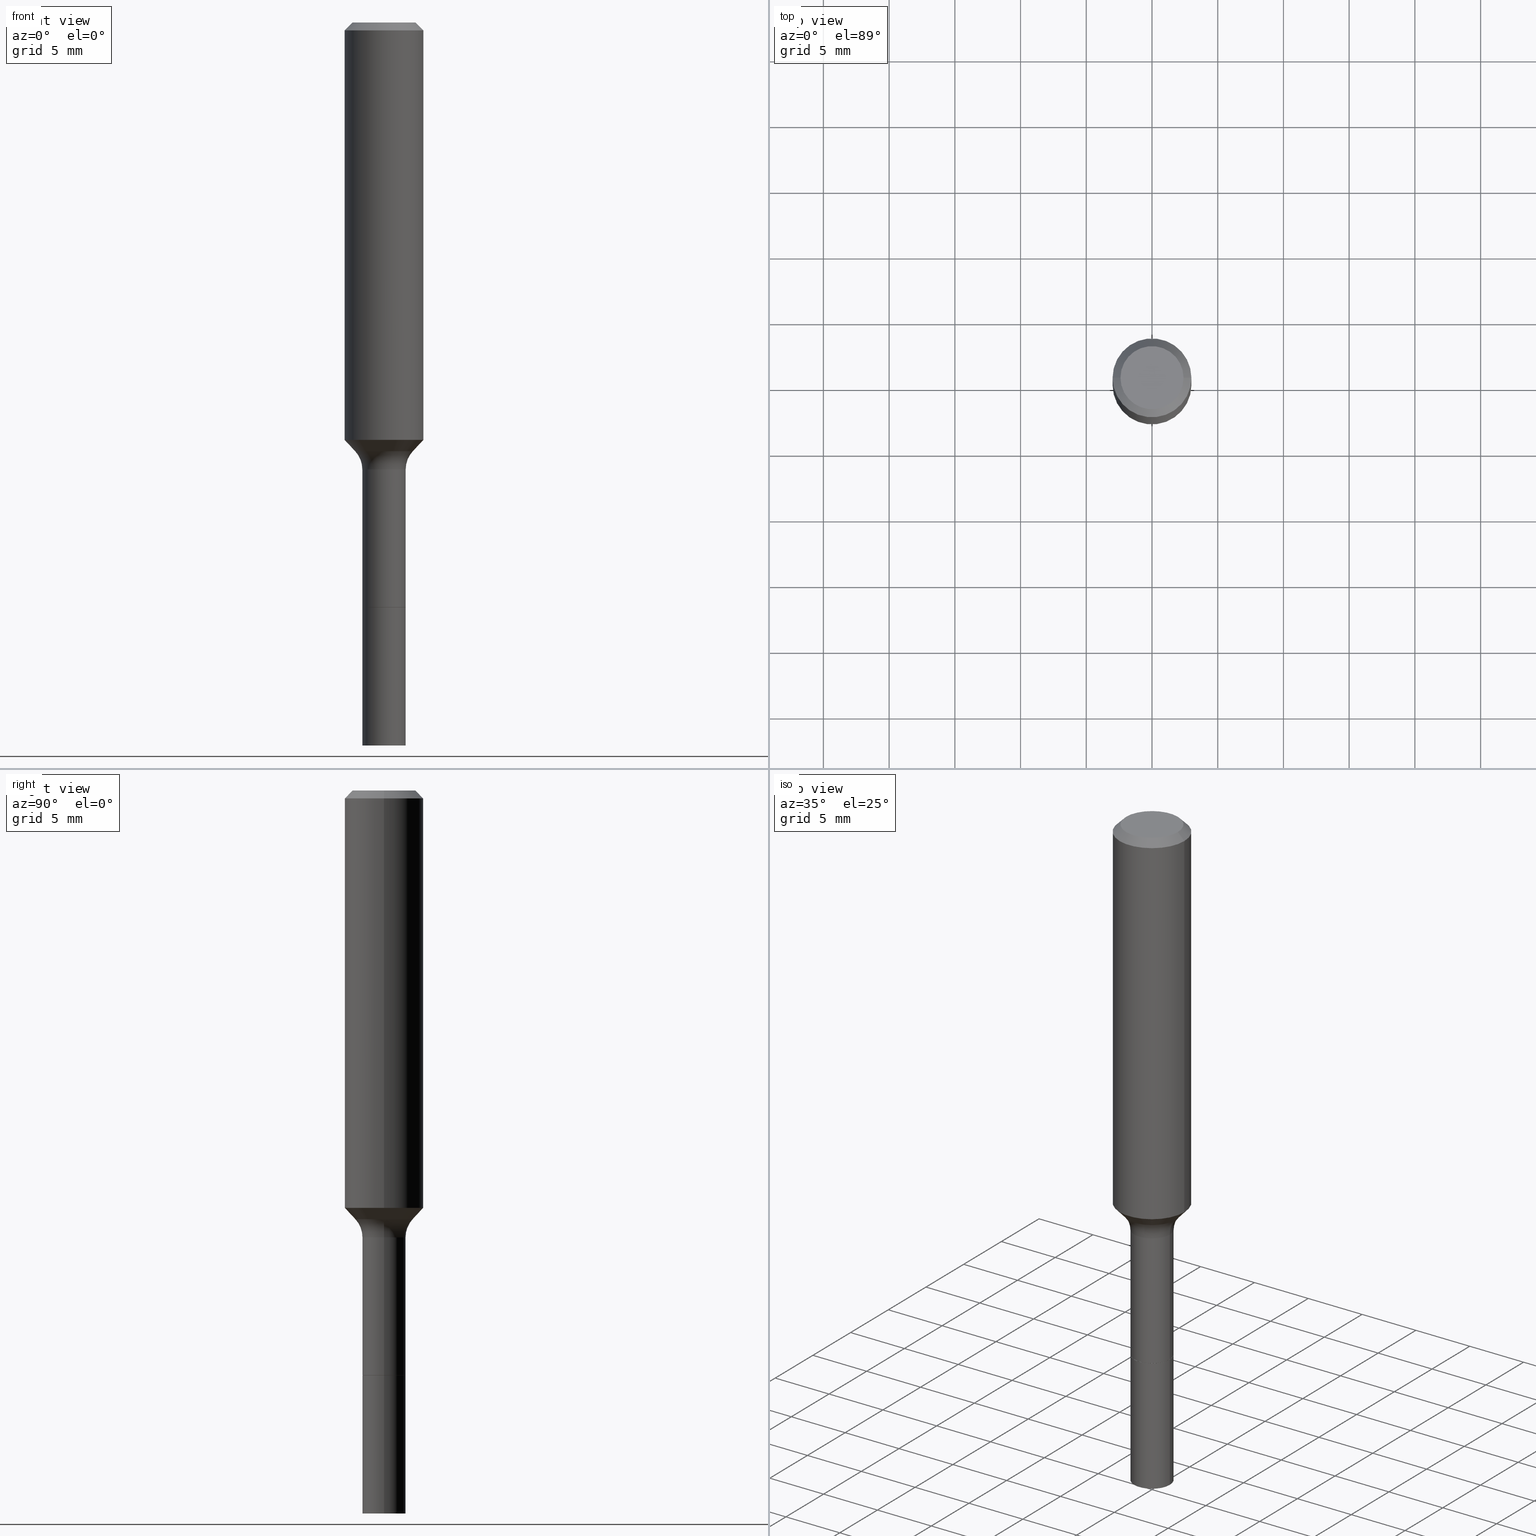
[diagram: canonical four-view strip — front | top / right | iso, engineering-drawing reading convention]
A machine part, canonical four-view strip (front | top / right | iso — engineering-drawing reading convention). The complete STEP part file that produces these views, byte-faithful:
ISO-10303-21;
HEADER;
FILE_DESCRIPTION (( 'STEP AP203' ),
    '1' );
FILE_NAME ('67708.STEP',
    '2025-04-01T15:29:25',
    ( '' ),
    ( '' ),
    'SwSTEP 2.0',
    'SolidWorks 2024',
    '' );
FILE_SCHEMA (( 'CONFIG_CONTROL_DESIGN' ));
ENDSEC;

DATA;
#1 = ORIENTED_EDGE ( 'NONE', *, *, #211, .F. ) ;
#2 = CIRCLE ( 'NONE', #509, 0.1180999999999999966 ) ;
#3 = DIRECTION ( 'NONE',  ( -2.445468806185136877E-29, 3.491481338843145188E-15, 1.000000000000000000 ) ) ;
#4 = AXIS2_PLACEMENT_3D ( 'NONE', #23, #104, #61 ) ;
#5 = EDGE_CURVE ( 'NONE', #88, #444, #49, .T. ) ;
#6 = ORIENTED_EDGE ( 'NONE', *, *, #103, .T. ) ;
#7 = ORIENTED_EDGE ( 'NONE', *, *, #472, .F. ) ;
#8 = DIRECTION ( 'NONE',  ( 1.000000000000000000, -6.982962677686268288E-15, 0.000000000000000000 ) ) ;
#9 = CARTESIAN_POINT ( 'NONE',  ( 5.776197320209328408E-31, -8.246878922347560526E-17, -0.02362000000000014435 ) ) ;
#10 = CC_DESIGN_PERSON_AND_ORGANIZATION_ASSIGNMENT ( #141, #213, ( #74 ) ) ;
#11 = AXIS2_PLACEMENT_3D ( 'NONE', #407, #230, #107 ) ;
#12 = LOCAL_TIME ( 11, 29, 25.00000000000000000, #499 ) ;
#13 = DIRECTION ( 'NONE',  ( -2.445468806185136597E-29, 3.491481338843145583E-15, 1.000000000000000000 ) ) ;
#14 = ORIENTED_EDGE ( 'NONE', *, *, #322, .F. ) ;
#15 = APPROVAL_ROLE ( '' ) ;
#16 = SHAPE_DEFINITION_REPRESENTATION ( #163, #455 ) ;
#17 = FACE_OUTER_BOUND ( 'NONE', #435, .T. ) ;
#18 = EDGE_LOOP ( 'NONE', ( #489, #118 ) ) ;
#19 = AXIS2_PLACEMENT_3D ( 'NONE', #162, #518, #352 ) ;
#20 = PERSON_AND_ORGANIZATION_ROLE ( 'creator' ) ;
#21 = ADVANCED_FACE ( 'NONE', ( #208 ), #46, .F. ) ;
#22 = CALENDAR_DATE ( 2025, 1, 4 ) ;
#23 = CARTESIAN_POINT ( 'NONE',  ( 0.000000000000000000, 0.000000000000000000, 0.000000000000000000 ) ) ;
#24 = ORIENTED_EDGE ( 'NONE', *, *, #147, .F. ) ;
#25 = APPROVAL ( #364, 'UNSPECIFIED' ) ;
#26 = APPROVAL_ROLE ( '' ) ;
#27 = CONICAL_SURFACE ( 'NONE', #55, 0.1180999999999999966, 0.7853981633974461696 ) ;
#28 = DIRECTION ( 'NONE',  ( 1.000000000000000000, -6.982962677686268288E-15, 0.000000000000000000 ) ) ;
#29 = AXIS2_PLACEMENT_3D ( 'NONE', #246, #173, #501 ) ;
#30 = EDGE_LOOP ( 'NONE', ( #375, #471, #293, #268 ) ) ;
#31 = CARTESIAN_POINT ( 'NONE',  ( 0.000000000000000000, 0.000000000000000000, 0.000000000000000000 ) ) ;
#32 = DIRECTION ( 'NONE',  ( 1.000000000000000000, -6.982962677686261189E-15, 0.000000000000000000 ) ) ;
#33 = ORIENTED_EDGE ( 'NONE', *, *, #338, .T. ) ;
#34 = ORIENTED_EDGE ( 'NONE', *, *, #136, .F. ) ;
#35 = FACE_OUTER_BOUND ( 'NONE', #81, .T. ) ;
#36 = VECTOR ( 'NONE', #385, 39.37007874015748143 ) ;
#37 = AXIS2_PLACEMENT_3D ( 'NONE', #493, #324, #108 ) ;
#38 = ORIENTED_EDGE ( 'NONE', *, *, #50, .T. ) ;
#39 = ORIENTED_EDGE ( 'NONE', *, *, #5, .F. ) ;
#40 = DIRECTION ( 'NONE',  ( 1.000000000000000000, -6.982962677686265922E-15, 0.000000000000000000 ) ) ;
#41 = DIRECTION ( 'NONE',  ( -1.000000000000000000, 6.982962677686265922E-15, -4.876176775795935793E-29 ) ) ;
#42 = ORIENTED_EDGE ( 'NONE', *, *, #504, .F. ) ;
#43 = LINE ( 'NONE', #171, #341 ) ;
#44 = EDGE_CURVE ( 'NONE', #144, #339, #374, .T. ) ;
#45 = ORIENTED_EDGE ( 'NONE', *, *, #442, .T. ) ;
#46 = TOROIDAL_SURFACE ( 'NONE', #222, 0.1449499999999999400, 0.08000000000000009881 ) ;
#47 = CARTESIAN_POINT ( 'NONE',  ( -0.06495000000000013263, -6.376219547114229449E-15, -2.165399999999999991 ) ) ;
#48 = AXIS2_PLACEMENT_3D ( 'NONE', #276, #399, #92 ) ;
#49 = LINE ( 'NONE', #91, #130 ) ;
#50 = EDGE_CURVE ( 'NONE', #325, #131, #134, .T. ) ;
#51 = DIRECTION ( 'NONE',  ( 1.000000000000000000, -6.982962677686274599E-15, 0.000000000000000000 ) ) ;
#52 = DIRECTION ( 'NONE',  ( -2.445468806185136597E-29, 3.491481338843145583E-15, 1.000000000000000000 ) ) ;
#53 = ORIENTED_EDGE ( 'NONE', *, *, #220, .T. ) ;
#54 = CARTESIAN_POINT ( 'NONE',  ( 0.1180999999999999966, -8.926936027602933910E-16, -0.02362000000000014435 ) ) ;
#55 = AXIS2_PLACEMENT_3D ( 'NONE', #200, #93, #245 ) ;
#56 = AXIS2_PLACEMENT_3D ( 'NONE', #176, #296, #28 ) ;
#57 = PERSON_AND_ORGANIZATION_ROLE ( 'classification_officer' ) ;
#58 = CARTESIAN_POINT ( 'NONE',  ( -0.06494999999999999385, -4.931619143167880420E-15, -1.750899999999999901 ) ) ;
#59 = ORIENTED_EDGE ( 'NONE', *, *, #286, .F. ) ;
#60 = ADVANCED_FACE ( 'NONE', ( #275 ), #404, .T. ) ;
#61 = DIRECTION ( 'NONE',  ( 1.000000000000000000, 0.000000000000000000, 0.000000000000000000 ) ) ;
#62 = CIRCLE ( 'NONE', #451, 0.09447999999999998066 ) ;
#63 = DATE_AND_TIME ( #174, #350 ) ;
#64 = DATE_TIME_ROLE ( 'creation_date' ) ;
#65 = APPROVAL ( #288, 'UNSPECIFIED' ) ;
#66 = FACE_OUTER_BOUND ( 'NONE', #76, .T. ) ;
#67 = EDGE_LOOP ( 'NONE', ( #42, #154, #267, #481 ) ) ;
#68 = CARTESIAN_POINT ( 'NONE',  ( 0.09447999999999998066, -7.704367267948738690E-16, -3.085620075131172158E-17 ) ) ;
#69 = DIRECTION ( 'NONE',  ( 1.000000000000000000, -6.982962677686264344E-15, 0.000000000000000000 ) ) ;
#70 = CLOSED_SHELL ( 'NONE', ( #408, #179, #202, #414 ) ) ;
#71 = DIRECTION ( 'NONE',  ( 7.105427357601001859E-15, 1.000000000000000000, -3.491481338843145583E-15 ) ) ;
#72 = APPROVAL_PERSON_ORGANIZATION ( #183, #244, #26 ) ;
#73 = ORIENTED_EDGE ( 'NONE', *, *, #44, .F. ) ;
#74 = PRODUCT ( '67708', '67708', '', ( #372 ) ) ;
#75 = CARTESIAN_POINT ( 'NONE',  ( 0.08644170387046620774, -5.086123052048351636E-15, -1.283840131194999623 ) ) ;
#76 = EDGE_LOOP ( 'NONE', ( #310, #271, #348, #312 ) ) ;
#77 = DIRECTION ( 'NONE',  ( -2.445468806185136597E-29, 3.491481338843145583E-15, 1.000000000000000000 ) ) ;
#78 = EDGE_CURVE ( 'NONE', #411, #387, #231, .T. ) ;
#79 = ORIENTED_EDGE ( 'NONE', *, *, #103, .F. ) ;
#80 = CIRCLE ( 'NONE', #502, 0.06494999999999999385 ) ;
#81 = EDGE_LOOP ( 'NONE', ( #53, #125 ) ) ;
#82 = DIRECTION ( 'NONE',  ( -2.445468806185136597E-29, 3.491481338843145583E-15, 1.000000000000000000 ) ) ;
#83 = EDGE_CURVE ( 'NONE', #506, #444, #458, .T. ) ;
#84 = CARTESIAN_POINT ( 'NONE',  ( 0.06495000000000006324, -6.568523842765608074E-15, -1.751399999999999846 ) ) ;
#85 = ORIENTED_EDGE ( 'NONE', *, *, #99, .T. ) ;
#86 = CARTESIAN_POINT ( 'NONE',  ( 4.282994067152647543E-29, -6.114980416849884881E-15, -1.751399999999999846 ) ) ;
#87 = AXIS2_PLACEMENT_3D ( 'NONE', #111, #119, #262 ) ;
#88 = VERTEX_POINT ( 'NONE', #234 ) ;
#89 = CARTESIAN_POINT ( 'NONE',  ( 3.273015450198186344E-29, -4.672998623907665346E-15, -1.338399999999999812 ) ) ;
#90 = ADVANCED_FACE ( 'NONE', ( #446 ), #27, .T. ) ;
#91 = CARTESIAN_POINT ( 'NONE',  ( -0.06444999999999999341, -5.657035623652499471E-15, -1.751399999999999846 ) ) ;
#92 = DIRECTION ( 'NONE',  ( 1.000000000000000000, -6.982962677686259611E-15, 0.000000000000000000 ) ) ;
#93 = DIRECTION ( 'NONE',  ( 2.445468806185136597E-29, -3.491481338843145583E-15, -1.000000000000000000 ) ) ;
#94 = DIRECTION ( 'NONE',  ( 0.7071067811865460184, -7.319954787623251312E-15, -0.7071067811865490160 ) ) ;
#95 = DIRECTION ( 'NONE',  ( -2.445468806185136597E-29, 3.491481338843145583E-15, 1.000000000000000000 ) ) ;
#96 = CONICAL_SURFACE ( 'NONE', #19, 0.1180999999999999966, 0.7853981633974461696 ) ;
#97 = PERSON_AND_ORGANIZATION_ROLE ( 'creator' ) ;
#98 = DIRECTION ( 'NONE',  ( 1.000000000000000000, -6.982962677686268288E-15, 0.000000000000000000 ) ) ;
#99 = EDGE_CURVE ( 'NONE', #342, #506, #126, .T. ) ;
#100 = CALENDAR_DATE ( 2025, 1, 4 ) ;
#101 = PERSON_AND_ORGANIZATION ( #308, #285 ) ;
#102 = AXIS2_PLACEMENT_3D ( 'NONE', #361, #13, #505 ) ;
#103 = EDGE_CURVE ( 'NONE', #416, #313, #277, .T. ) ;
#104 = DIRECTION ( 'NONE',  ( 0.000000000000000000, 0.000000000000000000, 1.000000000000000000 ) ) ;
#105 = CYLINDRICAL_SURFACE ( 'NONE', #367, 0.06495000000000006324 ) ;
#106 = ORIENTED_EDGE ( 'NONE', *, *, #116, .T. ) ;
#107 = DIRECTION ( 'NONE',  ( 1.000000000000000000, -6.982962677686264344E-15, 0.000000000000000000 ) ) ;
#108 = DIRECTION ( 'NONE',  ( 1.000000000000000000, -6.982962677686265922E-15, 0.000000000000000000 ) ) ;
#109 = ORIENTED_EDGE ( 'NONE', *, *, #228, .F. ) ;
#110 = DIRECTION ( 'NONE',  ( -2.445468806185136597E-29, 3.491481338843145583E-15, 1.000000000000000000 ) ) ;
#111 = CARTESIAN_POINT ( 'NONE',  ( 4.282994067152647543E-29, -6.114980416849884881E-15, -1.751399999999999846 ) ) ;
#112 = AXIS2_PLACEMENT_3D ( 'NONE', #464, #153, #302 ) ;
#113 = AXIS2_PLACEMENT_3D ( 'NONE', #360, #82, #356 ) ;
#114 = CIRCLE ( 'NONE', #48, 0.06444999999999999341 ) ;
#115 = EDGE_LOOP ( 'NONE', ( #39, #229, #85, #260 ) ) ;
#116 = EDGE_CURVE ( 'NONE', #164, #219, #284, .T. ) ;
#117 = CARTESIAN_POINT ( 'NONE',  ( 5.776197320209328408E-31, -8.246878922347560526E-17, -0.02362000000000014435 ) ) ;
#118 = ORIENTED_EDGE ( 'NONE', *, *, #194, .F. ) ;
#119 = DIRECTION ( 'NONE',  ( -2.445468806185136597E-29, 3.491481338843145583E-15, 1.000000000000000000 ) ) ;
#120 = ORIENTED_EDGE ( 'NONE', *, *, #289, .T. ) ;
#121 = PLANE ( 'NONE',  #255 ) ;
#122 = CC_DESIGN_PERSON_AND_ORGANIZATION_ASSIGNMENT ( #409, #57, ( #177 ) ) ;
#123 = AXIS2_PLACEMENT_3D ( 'NONE', #9, #394, #169 ) ;
#124 = VECTOR ( 'NONE', #393, 39.37007874015748143 ) ;
#125 = ORIENTED_EDGE ( 'NONE', *, *, #266, .T. ) ;
#126 = LINE ( 'NONE', #351, #159 ) ;
#127 = FACE_OUTER_BOUND ( 'NONE', #115, .T. ) ;
#128 = ORIENTED_EDGE ( 'NONE', *, *, #512, .F. ) ;
#129 = CARTESIAN_POINT ( 'NONE',  ( 4.282994067152647543E-29, -6.114980416849884881E-15, -1.751399999999999846 ) ) ;
#130 = VECTOR ( 'NONE', #484, 39.37007874015748143 ) ;
#131 = VERTEX_POINT ( 'NONE', #156 ) ;
#132 = APPROVAL_PERSON_ORGANIZATION ( #181, #25, #15 ) ;
#133 = CARTESIAN_POINT ( 'NONE',  ( 0.06494999999999999385, -6.568523842765608074E-15, -1.751399999999999846 ) ) ;
#134 = LINE ( 'NONE', #392, #175 ) ;
#135 = FACE_OUTER_BOUND ( 'NONE', #517, .T. ) ;
#136 = EDGE_CURVE ( 'NONE', #219, #164, #465, .T. ) ;
#137 = CARTESIAN_POINT ( 'NONE',  ( 4.281771332749555302E-29, -6.113234676180463377E-15, -1.750899999999999901 ) ) ;
#138 = AXIS2_PLACEMENT_3D ( 'NONE', #129, #52, #8 ) ;
#139 = COORDINATED_UNIVERSAL_TIME_OFFSET ( 5, 0, .BEHIND. ) ;
#140 = EDGE_CURVE ( 'NONE', #313, #164, #427, .T. ) ;
#141 = PERSON_AND_ORGANIZATION ( #308, #285 ) ;
#142 = DIRECTION ( 'NONE',  ( -1.000000000000000000, 6.982962677686265922E-15, -4.876176775795935793E-29 ) ) ;
#143 = ORIENTED_EDGE ( 'NONE', *, *, #383, .T. ) ;
#144 = VERTEX_POINT ( 'NONE', #470 ) ;
#145 = CARTESIAN_POINT ( 'NONE',  ( 5.295418152913294345E-29, -7.560453691130947423E-15, -2.165399999999999991 ) ) ;
#146 = DIRECTION ( 'NONE',  ( 1.000000000000000000, -6.982962677686266711E-15, 4.876176775795936353E-29 ) ) ;
#147 = EDGE_CURVE ( 'NONE', #387, #411, #2, .T. ) ;
#148 = EDGE_LOOP ( 'NONE', ( #401, #291, #297, #258 ) ) ;
#149 = CARTESIAN_POINT ( 'NONE',  ( 0.06494999999999996609, -4.535434259157227002E-16, 3.167076815879458313E-30 ) ) ;
#150 = CIRCLE ( 'NONE', #247, 0.08644170387046620774 ) ;
#151 = CIRCLE ( 'NONE', #376, 0.06495000000000013263 ) ;
#152 = ORIENTED_EDGE ( 'NONE', *, *, #228, .T. ) ;
#153 = DIRECTION ( 'NONE',  ( -2.445468806185136597E-29, 3.491481338843145583E-15, 1.000000000000000000 ) ) ;
#154 = ORIENTED_EDGE ( 'NONE', *, *, #220, .F. ) ;
#155 = CC_DESIGN_DATE_AND_TIME_ASSIGNMENT ( #417, #64, ( #327 ) ) ;
#156 = CARTESIAN_POINT ( 'NONE',  ( -0.06494999999999999385, -6.376219547114230237E-15, -1.751399999999999846 ) ) ;
#157 = EDGE_LOOP ( 'NONE', ( #511, #193, #419, #14 ) ) ;
#158 = DIRECTION ( 'NONE',  ( -2.445468806185136597E-29, 3.491481338843145583E-15, 1.000000000000000000 ) ) ;
#159 = VECTOR ( 'NONE', #439, 39.37007874015748143 ) ;
#160 = AXIS2_PLACEMENT_3D ( 'NONE', #402, #438, #40 ) ;
#161 = ORIENTED_EDGE ( 'NONE', *, *, #116, .F. ) ;
#162 = CARTESIAN_POINT ( 'NONE',  ( 5.776197320209328408E-31, -8.246878922347560526E-17, -0.02362000000000014435 ) ) ;
#163 = PRODUCT_DEFINITION_SHAPE ( 'NONE', 'NONE',  #327 ) ;
#164 = VERTEX_POINT ( 'NONE', #333 ) ;
#165 = DIRECTION ( 'NONE',  ( 1.000000000000000000, -6.982962677686259611E-15, 0.000000000000000000 ) ) ;
#166 = CARTESIAN_POINT ( 'NONE',  ( 3.273015450198186344E-29, -4.672998623907665346E-15, -1.338399999999999812 ) ) ;
#167 = EDGE_CURVE ( 'NONE', #339, #144, #207, .T. ) ;
#168 = CARTESIAN_POINT ( 'NONE',  ( 7.545787641473140628E-46, -1.077338491108201769E-31, -3.085620075131671975E-17 ) ) ;
#169 = DIRECTION ( 'NONE',  ( 1.000000000000000000, -6.982962677686266711E-15, 0.000000000000000000 ) ) ;
#170 = VECTOR ( 'NONE', #94, 39.37007874015748143 ) ;
#171 = CARTESIAN_POINT ( 'NONE',  ( -0.1180999999999999966, 7.422191030112725094E-16, -0.02362000000000014435 ) ) ;
#172 = CC_DESIGN_PERSON_AND_ORGANIZATION_ASSIGNMENT ( #454, #20, ( #327 ) ) ;
#173 = DIRECTION ( 'NONE',  ( -2.445468806185136597E-29, 3.491481338843145583E-15, 1.000000000000000000 ) ) ;
#174 = CALENDAR_DATE ( 2025, 1, 4 ) ;
#175 = VECTOR ( 'NONE', #205, 39.37007874015748143 ) ;
#176 = CARTESIAN_POINT ( 'NONE',  ( 4.282994067152647543E-29, -6.114980416849884881E-15, -1.751399999999999846 ) ) ;
#177 = SECURITY_CLASSIFICATION ( '', '', #321 ) ;
#178 = LOCAL_TIME ( 11, 29, 25.00000000000000000, #503 ) ;
#179 = ADVANCED_FACE ( 'NONE', ( #475 ), #226, .T. ) ;
#180 = DATE_AND_TIME ( #368, #466 ) ;
#181 = PERSON_AND_ORGANIZATION ( #308, #285 ) ;
#182 = CIRCLE ( 'NONE', #299, 0.08000000000000009881 ) ;
#183 = PERSON_AND_ORGANIZATION ( #308, #285 ) ;
#184 = CARTESIAN_POINT ( 'NONE',  ( -0.08644170387046629100, -3.868298612606422087E-15, -1.283840131194999623 ) ) ;
#185 = EDGE_LOOP ( 'NONE', ( #59, #188, #463, #24 ) ) ;
#186 = ADVANCED_FACE ( 'NONE', ( #35 ), #121, .F. ) ;
#187 = CARTESIAN_POINT ( 'NONE',  ( 5.295418152913294345E-29, -7.560453691130947423E-15, -2.165399999999999991 ) ) ;
#188 = ORIENTED_EDGE ( 'NONE', *, *, #136, .T. ) ;
#189 = LINE ( 'NONE', #149, #36 ) ;
#190 = ORIENTED_EDGE ( 'NONE', *, *, #140, .F. ) ;
#191 = VECTOR ( 'NONE', #272, 39.37007874015748143 ) ;
#192 = CC_DESIGN_APPROVAL ( #25, ( #177 ) ) ;
#193 = ORIENTED_EDGE ( 'NONE', *, *, #504, .T. ) ;
#194 = EDGE_CURVE ( 'NONE', #88, #342, #500, .T. ) ;
#195 = CARTESIAN_POINT ( 'NONE',  ( 3.056568876978149213E-29, -4.363970281635246080E-15, -1.249890765012992233 ) ) ;
#196 = CARTESIAN_POINT ( 'NONE',  ( -0.1181000000000000660, 8.391509709326787887E-16, -5.809262341591047287E-30 ) ) ;
#197 = ORIENTED_EDGE ( 'NONE', *, *, #286, .T. ) ;
#198 = DIRECTION ( 'NONE',  ( 1.000000000000000000, -6.982962677686265922E-15, 4.876176775795935793E-29 ) ) ;
#199 = CIRCLE ( 'NONE', #56, 0.06494999999999999385 ) ;
#200 = CARTESIAN_POINT ( 'NONE',  ( 5.776197320209328408E-31, -8.246878922347560526E-17, -0.02362000000000014435 ) ) ;
#201 = DIRECTION ( 'NONE',  ( -2.438088387897960049E-29, 3.491481338843145188E-15, 1.000000000000000000 ) ) ;
#202 = ADVANCED_FACE ( 'NONE', ( #473 ), #337, .T. ) ;
#203 = CARTESIAN_POINT ( 'NONE',  ( 3.139590992966005452E-29, -4.482503860125277286E-15, -1.283840131194999623 ) ) ;
#204 = CARTESIAN_POINT ( 'NONE',  ( 0.08644170387046629100, -5.086123052048351636E-15, -1.283840131194999623 ) ) ;
#205 = DIRECTION ( 'NONE',  ( -2.445468806185136877E-29, 3.491481338843145188E-15, 1.000000000000000000 ) ) ;
#206 = CARTESIAN_POINT ( 'NONE',  ( -0.06494999999999993834, -4.931619143167880420E-15, -1.338399999999999812 ) ) ;
#207 = CIRCLE ( 'NONE', #239, 0.06494999999999993834 ) ;
#208 = FACE_OUTER_BOUND ( 'NONE', #384, .T. ) ;
#209 = TOROIDAL_SURFACE ( 'NONE', #359, 0.1449499999999999400, 0.08000000000000009881 ) ;
#210 = CARTESIAN_POINT ( 'NONE',  ( 0.06494999999999999385, -6.566778102096186571E-15, -1.750899999999999901 ) ) ;
#211 = EDGE_CURVE ( 'NONE', #506, #144, #189, .T. ) ;
#212 =( NAMED_UNIT ( * ) SI_UNIT ( $, .STERADIAN. ) SOLID_ANGLE_UNIT ( ) );
#213 = PERSON_AND_ORGANIZATION_ROLE ( 'design_owner' ) ;
#214 = AXIS2_PLACEMENT_3D ( 'NONE', #31, #110, #336 ) ;
#215 = CONICAL_SURFACE ( 'NONE', #307, 0.06444999999999999341, 0.7853981633975420928 ) ;
#216 = COORDINATED_UNIVERSAL_TIME_OFFSET ( 5, 0, .BEHIND. ) ;
#217 = PERSON_AND_ORGANIZATION ( #308, #285 ) ;
#218 = CARTESIAN_POINT ( 'NONE',  ( 0.1180999999999999966, -9.071566814582237199E-16, -0.02362000000000014435 ) ) ;
#219 = VERTEX_POINT ( 'NONE', #343 ) ;
#220 = EDGE_CURVE ( 'NONE', #474, #227, #366, .T. ) ;
#221 = DIRECTION ( 'NONE',  ( 1.000000000000000000, -6.982962677686265922E-15, 0.000000000000000000 ) ) ;
#222 = AXIS2_PLACEMENT_3D ( 'NONE', #479, #355, #236 ) ;
#223 = DIRECTION ( 'NONE',  ( 1.000000000000000000, -6.982962677686266711E-15, 0.000000000000000000 ) ) ;
#224 = CARTESIAN_POINT ( 'NONE',  ( -0.09447999999999998066, 7.009847083995354710E-16, -3.085620075132147757E-17 ) ) ;
#225 = ORIENTED_EDGE ( 'NONE', *, *, #383, .F. ) ;
#226 = PLANE ( 'NONE',  #396 ) ;
#227 = VERTEX_POINT ( 'NONE', #68 ) ;
#228 = EDGE_CURVE ( 'NONE', #313, #416, #150, .T. ) ;
#229 = ORIENTED_EDGE ( 'NONE', *, *, #194, .T. ) ;
#230 = DIRECTION ( 'NONE',  ( -2.445468806185136597E-29, 3.491481338843145583E-15, 1.000000000000000000 ) ) ;
#231 = CIRCLE ( 'NONE', #123, 0.1180999999999999966 ) ;
#232 = ORIENTED_EDGE ( 'NONE', *, *, #512, .T. ) ;
#233 = DIRECTION ( 'NONE',  ( -6.982962677686266711E-15, -1.000000000000000000, 3.491481338843145583E-15 ) ) ;
#234 = CARTESIAN_POINT ( 'NONE',  ( -0.06444999999999999341, -5.654386396478389058E-15, -1.751399999999999846 ) ) ;
#235 = FACE_OUTER_BOUND ( 'NONE', #157, .T. ) ;
#236 = DIRECTION ( 'NONE',  ( 1.000000000000000000, -6.982962677686269077E-15, 4.883557194083114022E-29 ) ) ;
#237 = DIRECTION ( 'NONE',  ( -0.7071067811865460184, 2.468850131082241283E-15, -0.7071067811865490160 ) ) ;
#238 = ADVANCED_FACE ( 'NONE', ( #377 ), #340, .T. ) ;
#239 = AXIS2_PLACEMENT_3D ( 'NONE', #344, #434, #304 ) ;
#240 = ORIENTED_EDGE ( 'NONE', *, *, #78, .F. ) ;
#241 = DIRECTION ( 'NONE',  ( 1.000000000000000000, -6.982962677686269077E-15, 4.883557194083114022E-29 ) ) ;
#242 = DIRECTION ( 'NONE',  ( -2.445468806185136597E-29, 3.491481338843145583E-15, 1.000000000000000000 ) ) ;
#243 = CYLINDRICAL_SURFACE ( 'NONE', #510, 0.1181000000000000660 ) ;
#244 = APPROVAL ( #287, 'UNSPECIFIED' ) ;
#245 = DIRECTION ( 'NONE',  ( -1.000000000000000000, 6.982962677686266711E-15, 0.000000000000000000 ) ) ;
#246 = CARTESIAN_POINT ( 'NONE',  ( 4.282994067152647543E-29, -6.114980416849884881E-15, -1.751399999999999846 ) ) ;
#247 = AXIS2_PLACEMENT_3D ( 'NONE', #294, #381, #221 ) ;
#248 = AXIS2_PLACEMENT_3D ( 'NONE', #320, #334, #146 ) ;
#249 =( NAMED_UNIT ( * ) PLANE_ANGLE_UNIT ( ) SI_UNIT ( $, .RADIAN. ) );
#250 = APPLICATION_CONTEXT ( 'configuration controlled 3d designs of mechanical parts and assemblies' ) ;
#251 = PERSON_AND_ORGANIZATION_ROLE ( 'design_supplier' ) ;
#252 = FACE_OUTER_BOUND ( 'NONE', #335, .T. ) ;
#253 = DATE_AND_TIME ( #100, #415 ) ;
#254 = ADVANCED_FACE ( 'NONE', ( #425 ), #513, .F. ) ;
#255 = AXIS2_PLACEMENT_3D ( 'NONE', #295, #514, #41 ) ;
#256 = APPLICATION_PROTOCOL_DEFINITION ( 'international standard', 'config_control_design', 1994, #250 ) ;
#257 = FACE_OUTER_BOUND ( 'NONE', #185, .T. ) ;
#258 = ORIENTED_EDGE ( 'NONE', *, *, #338, .F. ) ;
#259 = LINE ( 'NONE', #418, #452 ) ;
#260 = ORIENTED_EDGE ( 'NONE', *, *, #400, .F. ) ;
#261 = CC_DESIGN_APPROVAL ( #244, ( #327 ) ) ;
#262 = DIRECTION ( 'NONE',  ( 1.000000000000000000, -6.982962677686261189E-15, 0.000000000000000000 ) ) ;
#263 = DESIGN_CONTEXT ( 'detailed design', #250, 'design' ) ;
#264 = APPLICATION_PROTOCOL_DEFINITION ( 'international standard', 'config_control_design', 1994, #403 ) ;
#265 = VERTEX_POINT ( 'NONE', #349 ) ;
#266 = EDGE_CURVE ( 'NONE', #227, #474, #62, .T. ) ;
#267 = ORIENTED_EDGE ( 'NONE', *, *, #322, .T. ) ;
#268 = ORIENTED_EDGE ( 'NONE', *, *, #167, .F. ) ;
#269 = AXIS2_PLACEMENT_3D ( 'NONE', #469, #329, #516 ) ;
#270 = AXIS2_PLACEMENT_3D ( 'NONE', #405, #290, #142 ) ;
#271 = ORIENTED_EDGE ( 'NONE', *, *, #5, .T. ) ;
#272 = DIRECTION ( 'NONE',  ( -2.445468806185136877E-29, 3.491481338843145188E-15, 1.000000000000000000 ) ) ;
#273 = DIRECTION ( 'NONE',  ( -2.445468806185136597E-29, 3.491481338843145583E-15, 1.000000000000000000 ) ) ;
#274 = LINE ( 'NONE', #196, #191 ) ;
#275 = FACE_OUTER_BOUND ( 'NONE', #30, .T. ) ;
#276 = CARTESIAN_POINT ( 'NONE',  ( 4.282994067152647543E-29, -6.114980416849884881E-15, -1.751399999999999846 ) ) ;
#277 = CIRCLE ( 'NONE', #298, 0.08644170387046620774 ) ;
#278 = AXIS2_PLACEMENT_3D ( 'NONE', #373, #71, #453 ) ;
#279 = EDGE_LOOP ( 'NONE', ( #426, #6, #515, #34 ) ) ;
#280 = LINE ( 'NONE', #346, #487 ) ;
#281 = ADVANCED_FACE ( 'NONE', ( #480 ), #486, .T. ) ;
#282 = DIRECTION ( 'NONE',  ( -2.445468806185136597E-29, 3.491481338843145583E-15, 1.000000000000000000 ) ) ;
#283 = DIRECTION ( 'NONE',  ( 1.000000000000000000, -6.982962677686266711E-15, 4.876176775795936353E-29 ) ) ;
#284 = CIRCLE ( 'NONE', #11, 0.1181000000000001493 ) ;
#285 = ORGANIZATION ( 'UNSPECIFIED', 'UNSPECIFIED', '' ) ;
#286 = EDGE_CURVE ( 'NONE', #219, #387, #274, .T. ) ;
#287 = APPROVAL_STATUS ( 'not_yet_approved' ) ;
#288 = APPROVAL_STATUS ( 'not_yet_approved' ) ;
#289 = EDGE_CURVE ( 'NONE', #416, #219, #314, .T. ) ;
#290 = DIRECTION ( 'NONE',  ( 2.438088387897960049E-29, -3.491481338843145188E-15, -1.000000000000000000 ) ) ;
#291 = ORIENTED_EDGE ( 'NONE', *, *, #472, .T. ) ;
#292 =( LENGTH_UNIT ( ) NAMED_UNIT ( * ) SI_UNIT ( $, .METRE. ) );
#293 = ORIENTED_EDGE ( 'NONE', *, *, #211, .T. ) ;
#294 = CARTESIAN_POINT ( 'NONE',  ( 3.139590992966005452E-29, -4.482503860125277286E-15, -1.283840131194999623 ) ) ;
#295 = CARTESIAN_POINT ( 'NONE',  ( 3.772893820736570314E-46, -5.386692455541008845E-32, -1.542810037565835988E-17 ) ) ;
#296 = DIRECTION ( 'NONE',  ( -2.445468806185136597E-29, 3.491481338843145583E-15, 1.000000000000000000 ) ) ;
#297 = ORIENTED_EDGE ( 'NONE', *, *, #390, .T. ) ;
#298 = AXIS2_PLACEMENT_3D ( 'NONE', #203, #273, #496 ) ;
#299 = AXIS2_PLACEMENT_3D ( 'NONE', #447, #233, #306 ) ;
#300 = VERTEX_POINT ( 'NONE', #133 ) ;
#301 = EDGE_CURVE ( 'NONE', #164, #411, #280, .T. ) ;
#302 = DIRECTION ( 'NONE',  ( 1.000000000000000000, -6.982962677686259611E-15, 0.000000000000000000 ) ) ;
#303 = ORIENTED_EDGE ( 'NONE', *, *, #167, .T. ) ;
#304 = DIRECTION ( 'NONE',  ( 1.000000000000000000, -6.982962677686274599E-15, 0.000000000000000000 ) ) ;
#305 = CARTESIAN_POINT ( 'NONE',  ( 4.281771332749555302E-29, -6.113234676180463377E-15, -1.750899999999999901 ) ) ;
#306 = DIRECTION ( 'NONE',  ( 1.000000000000000000, -6.982962677686263555E-15, 0.000000000000000000 ) ) ;
#307 = AXIS2_PLACEMENT_3D ( 'NONE', #483, #391, #165 ) ;
#308 = PERSON ( 'UNSPECIFIED', 'UNSPECIFIED', 'UNSPECIFIED', ('UNSPECIFIED'), ('UNSPECIFIED'), ('UNSPECIFIED') ) ;
#309 = ADVANCED_FACE ( 'NONE', ( #127 ), #215, .T. ) ;
#310 = ORIENTED_EDGE ( 'NONE', *, *, #354, .T. ) ;
#311 = DIRECTION ( 'NONE',  ( -2.445468806185136597E-29, 3.491481338843145583E-15, 1.000000000000000000 ) ) ;
#312 = ORIENTED_EDGE ( 'NONE', *, *, #99, .F. ) ;
#313 = VERTEX_POINT ( 'NONE', #204 ) ;
#314 = LINE ( 'NONE', #395, #406 ) ;
#315 = ADVANCED_FACE ( 'NONE', ( #235 ), #96, .T. ) ;
#316 = CIRCLE ( 'NONE', #138, 0.06494999999999999385 ) ;
#317 = DIRECTION ( 'NONE',  ( 1.000000000000000000, -6.982962677686268288E-15, 0.000000000000000000 ) ) ;
#318 = CARTESIAN_POINT ( 'NONE',  ( 0.000000000000000000, 0.000000000000000000, 0.000000000000000000 ) ) ;
#319 = PLANE ( 'NONE',  #270 ) ;
#320 = CARTESIAN_POINT ( 'NONE',  ( 0.000000000000000000, 0.000000000000000000, 0.000000000000000000 ) ) ;
#321 = SECURITY_CLASSIFICATION_LEVEL ( 'unclassified' ) ;
#322 = EDGE_CURVE ( 'NONE', #474, #387, #43, .T. ) ;
#323 = PRODUCT_DEFINITION_FORMATION_WITH_SPECIFIED_SOURCE ( 'ANY', '', #74, .NOT_KNOWN. ) ;
#324 = DIRECTION ( 'NONE',  ( -2.445468806185136597E-29, 3.491481338843145583E-15, 1.000000000000000000 ) ) ;
#325 = VERTEX_POINT ( 'NONE', #47 ) ;
#326 = DATE_TIME_ROLE ( 'classification_date' ) ;
#327 = PRODUCT_DEFINITION ( 'UNKNOWN', '', #323, #263 ) ;
#328 = CONICAL_SURFACE ( 'NONE', #29, 0.06444999999999999341, 0.7853981633975420928 ) ;
#329 = DIRECTION ( 'NONE',  ( -2.445468806185136597E-29, 3.491481338843145583E-15, 1.000000000000000000 ) ) ;
#330 = APPROVAL_DATE_TIME ( #63, #244 ) ;
#331 = LINE ( 'NONE', #54, #170 ) ;
#332 = EDGE_LOOP ( 'NONE', ( #422, #45, #73, #1 ) ) ;
#333 = CARTESIAN_POINT ( 'NONE',  ( 0.1181000000000001493, -5.188658173869994343E-15, -1.249890765012992233 ) ) ;
#334 = DIRECTION ( 'NONE',  ( -2.445468806185136597E-29, 3.491481338843145583E-15, 1.000000000000000000 ) ) ;
#335 = EDGE_LOOP ( 'NONE', ( #232, #38, #477, #389 ) ) ;
#336 = DIRECTION ( 'NONE',  ( 1.000000000000000000, -6.982962677686265133E-15, 4.876176775795935232E-29 ) ) ;
#337 = CYLINDRICAL_SURFACE ( 'NONE', #87, 0.06495000000000006324 ) ;
#338 = EDGE_CURVE ( 'NONE', #131, #300, #316, .T. ) ;
#339 = VERTEX_POINT ( 'NONE', #206 ) ;
#340 = CYLINDRICAL_SURFACE ( 'NONE', #214, 0.06494999999999996609 ) ;
#341 = VECTOR ( 'NONE', #237, 39.37007874015748143 ) ;
#342 = VERTEX_POINT ( 'NONE', #445 ) ;
#343 = CARTESIAN_POINT ( 'NONE',  ( -0.1181000000000001493, -3.524819310702566700E-15, -1.249890765012992233 ) ) ;
#344 = CARTESIAN_POINT ( 'NONE',  ( 3.273015450198186344E-29, -4.672998623907665346E-15, -1.338399999999999812 ) ) ;
#345 = ORIENTED_EDGE ( 'NONE', *, *, #424, .T. ) ;
#346 = CARTESIAN_POINT ( 'NONE',  ( 0.1181000000000000660, -8.246878922347485584E-16, 5.758764772215003944E-30 ) ) ;
#347 = ADVANCED_FACE ( 'NONE', ( #357 ), #209, .F. ) ;
#348 = ORIENTED_EDGE ( 'NONE', *, *, #83, .F. ) ;
#349 = CARTESIAN_POINT ( 'NONE',  ( 0.06495000000000013263, -8.013997117046670616E-15, -2.165399999999999991 ) ) ;
#350 = LOCAL_TIME ( 11, 29, 25.00000000000000000, #139 ) ;
#351 = CARTESIAN_POINT ( 'NONE',  ( 0.06444999999999999341, -6.565032361426764278E-15, -1.751399999999999846 ) ) ;
#352 = DIRECTION ( 'NONE',  ( -1.000000000000000000, 6.982962677686266711E-15, 0.000000000000000000 ) ) ;
#353 = UNCERTAINTY_MEASURE_WITH_UNIT (LENGTH_MEASURE( 1.000000000000000082E-05 ), #449, 'distance_accuracy_value', 'NONE');
#354 = EDGE_CURVE ( 'NONE', #342, #88, #114, .T. ) ;
#355 = DIRECTION ( 'NONE',  ( -2.445468806185136597E-29, 3.491481338843145583E-15, 1.000000000000000000 ) ) ;
#356 = DIRECTION ( 'NONE',  ( 1.000000000000000000, -6.982962677686265133E-15, 4.876176775795935232E-29 ) ) ;
#357 = FACE_OUTER_BOUND ( 'NONE', #428, .T. ) ;
#358 = AXIS2_PLACEMENT_3D ( 'NONE', #195, #429, #69 ) ;
#359 = AXIS2_PLACEMENT_3D ( 'NONE', #89, #158, #241 ) ;
#360 = CARTESIAN_POINT ( 'NONE',  ( 0.000000000000000000, 0.000000000000000000, 0.000000000000000000 ) ) ;
#361 = CARTESIAN_POINT ( 'NONE',  ( 5.295418152913294345E-29, -7.560453691130947423E-15, -2.165399999999999991 ) ) ;
#362 = CARTESIAN_POINT ( 'NONE',  ( 4.282994067152647543E-29, -6.114980416849884881E-15, -1.751399999999999846 ) ) ;
#363 = CC_DESIGN_DATE_AND_TIME_ASSIGNMENT ( #180, #326, ( #177 ) ) ;
#364 = APPROVAL_STATUS ( 'not_yet_approved' ) ;
#365 = DIRECTION ( 'NONE',  ( 1.000000000000000000, -6.982962677686269077E-15, 0.000000000000000000 ) ) ;
#366 = CIRCLE ( 'NONE', #269, 0.09447999999999998066 ) ;
#367 = AXIS2_PLACEMENT_3D ( 'NONE', #362, #460, #32 ) ;
#368 = CALENDAR_DATE ( 2025, 1, 4 ) ;
#369 = ADVANCED_FACE ( 'NONE', ( #135 ), #243, .T. ) ;
#370 = DIMENSIONAL_EXPONENTS ( 1.000000000000000000, 0.000000000000000000, 0.000000000000000000, 0.000000000000000000, 0.000000000000000000, 0.000000000000000000, 0.000000000000000000 ) ;
#371 = CALENDAR_DATE ( 2025, 1, 4 ) ;
#372 = MECHANICAL_CONTEXT ( 'NONE', #403, 'mechanical' ) ;
#373 = CARTESIAN_POINT ( 'NONE',  ( -0.1449499999999999400, -3.643066928423400750E-15, -1.338399999999999812 ) ) ;
#374 = CIRCLE ( 'NONE', #397, 0.06494999999999993834 ) ;
#375 = ORIENTED_EDGE ( 'NONE', *, *, #442, .F. ) ;
#376 = AXIS2_PLACEMENT_3D ( 'NONE', #187, #95, #365 ) ;
#377 = FACE_OUTER_BOUND ( 'NONE', #332, .T. ) ;
#378 = DIRECTION ( 'NONE',  ( 0.6819983600625014741, -2.208861293262506174E-15, 0.7313537016191676843 ) ) ;
#379 = CYLINDRICAL_SURFACE ( 'NONE', #248, 0.1181000000000000660 ) ;
#380 = ORIENTED_EDGE ( 'NONE', *, *, #430, .T. ) ;
#381 = DIRECTION ( 'NONE',  ( -2.445468806185136597E-29, 3.491481338843145583E-15, 1.000000000000000000 ) ) ;
#382 = DIRECTION ( 'NONE',  ( -1.000000000000000000, 6.982962677686265922E-15, -4.876176775795935793E-29 ) ) ;
#383 = EDGE_CURVE ( 'NONE', #313, #144, #182, .T. ) ;
#384 = EDGE_LOOP ( 'NONE', ( #508, #109, #143, #431 ) ) ;
#385 = DIRECTION ( 'NONE',  ( -2.445468806185136877E-29, 3.491481338843145188E-15, 1.000000000000000000 ) ) ;
#386 = DIRECTION ( 'NONE',  ( 2.438088387897960049E-29, -3.491481338843145188E-15, -1.000000000000000000 ) ) ;
#387 = VERTEX_POINT ( 'NONE', #478 ) ;
#388 =( GEOMETRIC_REPRESENTATION_CONTEXT ( 3 ) GLOBAL_UNCERTAINTY_ASSIGNED_CONTEXT ( ( #353 ) ) GLOBAL_UNIT_ASSIGNED_CONTEXT ( ( #449, #249, #212 ) ) REPRESENTATION_CONTEXT ( 'NONE', 'WORKASPACE' ) );
#389 = ORIENTED_EDGE ( 'NONE', *, *, #390, .F. ) ;
#390 = EDGE_CURVE ( 'NONE', #265, #300, #436, .T. ) ;
#391 = DIRECTION ( 'NONE',  ( -2.445468806185136597E-29, 3.491481338843145583E-15, 1.000000000000000000 ) ) ;
#392 = CARTESIAN_POINT ( 'NONE',  ( -0.06495000000000006324, -5.653482909973699361E-15, -1.751399999999999846 ) ) ;
#393 = DIRECTION ( 'NONE',  ( -2.445468806185136877E-29, 3.491481338843145188E-15, 1.000000000000000000 ) ) ;
#394 = DIRECTION ( 'NONE',  ( -2.445468806185136597E-29, 3.491481338843145583E-15, 1.000000000000000000 ) ) ;
#395 = CARTESIAN_POINT ( 'NONE',  ( -0.08644170387046620774, -3.868298612606422876E-15, -1.283840131194999623 ) ) ;
#396 = AXIS2_PLACEMENT_3D ( 'NONE', #145, #386, #382 ) ;
#397 = AXIS2_PLACEMENT_3D ( 'NONE', #166, #242, #51 ) ;
#398 = APPROVAL_PERSON_ORGANIZATION ( #497, #65, #457 ) ;
#399 = DIRECTION ( 'NONE',  ( -2.445468806185136597E-29, 3.491481338843145583E-15, 1.000000000000000000 ) ) ;
#400 = EDGE_CURVE ( 'NONE', #444, #506, #80, .T. ) ;
#401 = ORIENTED_EDGE ( 'NONE', *, *, #50, .F. ) ;
#402 = CARTESIAN_POINT ( 'NONE',  ( 3.139590992966005452E-29, -4.482503860125277286E-15, -1.283840131194999623 ) ) ;
#403 = APPLICATION_CONTEXT ( 'configuration controlled 3d designs of mechanical parts and assemblies' ) ;
#404 = CYLINDRICAL_SURFACE ( 'NONE', #113, 0.06494999999999996609 ) ;
#405 = CARTESIAN_POINT ( 'NONE',  ( 4.282994067152647543E-29, -6.114980416849884881E-15, -1.751399999999999846 ) ) ;
#406 = VECTOR ( 'NONE', #440, 39.37007874015748143 ) ;
#407 = CARTESIAN_POINT ( 'NONE',  ( 3.056568876978149213E-29, -4.363970281635246080E-15, -1.249890765012992233 ) ) ;
#408 = ADVANCED_FACE ( 'NONE', ( #252 ), #105, .T. ) ;
#409 = PERSON_AND_ORGANIZATION ( #308, #285 ) ;
#410 = DIRECTION ( 'NONE',  ( -2.445468806185136877E-29, 3.491481338843145188E-15, 1.000000000000000000 ) ) ;
#411 = VERTEX_POINT ( 'NONE', #218 ) ;
#412 = APPROVAL_DATE_TIME ( #253, #25 ) ;
#413 = DATE_AND_TIME ( #371, #178 ) ;
#414 = ADVANCED_FACE ( 'NONE', ( #17 ), #319, .F. ) ;
#415 = LOCAL_TIME ( 11, 29, 25.00000000000000000, #495 ) ;
#416 = VERTEX_POINT ( 'NONE', #184 ) ;
#417 = DATE_AND_TIME ( #22, #12 ) ;
#418 = CARTESIAN_POINT ( 'NONE',  ( -0.06494999999999996609, 4.614975068761848298E-16, -3.194848341120559503E-30 ) ) ;
#419 = ORIENTED_EDGE ( 'NONE', *, *, #78, .T. ) ;
#420 = DIRECTION ( 'NONE',  ( -2.445468806185136597E-29, 3.491481338843145583E-15, 1.000000000000000000 ) ) ;
#421 = AXIS2_PLACEMENT_3D ( 'NONE', #305, #282, #317 ) ;
#422 = ORIENTED_EDGE ( 'NONE', *, *, #83, .T. ) ;
#423 = CIRCLE ( 'NONE', #278, 0.08000000000000009881 ) ;
#424 = EDGE_CURVE ( 'NONE', #416, #339, #423, .T. ) ;
#425 = FACE_OUTER_BOUND ( 'NONE', #18, .T. ) ;
#426 = ORIENTED_EDGE ( 'NONE', *, *, #289, .F. ) ;
#427 = LINE ( 'NONE', #75, #432 ) ;
#428 = EDGE_LOOP ( 'NONE', ( #79, #345, #303, #225 ) ) ;
#429 = DIRECTION ( 'NONE',  ( -2.445468806185136597E-29, 3.491481338843145583E-15, 1.000000000000000000 ) ) ;
#430 = EDGE_CURVE ( 'NONE', #300, #131, #199, .T. ) ;
#431 = ORIENTED_EDGE ( 'NONE', *, *, #44, .T. ) ;
#432 = VECTOR ( 'NONE', #378, 39.37007874015748143 ) ;
#433 = CONICAL_SURFACE ( 'NONE', #37, 0.08644170387046620774, 0.7504915783575657473 ) ;
#434 = DIRECTION ( 'NONE',  ( -2.445468806185136597E-29, 3.491481338843145583E-15, 1.000000000000000000 ) ) ;
#435 = EDGE_LOOP ( 'NONE', ( #380, #33 ) ) ;
#436 = LINE ( 'NONE', #84, #124 ) ;
#437 = EDGE_LOOP ( 'NONE', ( #152, #120, #161, #190 ) ) ;
#438 = DIRECTION ( 'NONE',  ( -2.445468806185136597E-29, 3.491481338843145583E-15, 1.000000000000000000 ) ) ;
#439 = DIRECTION ( 'NONE',  ( 0.7071067811866138531, -2.468850131082952047E-15, 0.7071067811864811814 ) ) ;
#440 = DIRECTION ( 'NONE',  ( -0.6819983600625014741, 7.399397606724297620E-15, 0.7313537016191676843 ) ) ;
#441 = AXIS2_PLACEMENT_3D ( 'NONE', #86, #201, #198 ) ;
#442 = EDGE_CURVE ( 'NONE', #444, #339, #259, .T. ) ;
#443 = CIRCLE ( 'NONE', #102, 0.06495000000000013263 ) ;
#444 = VERTEX_POINT ( 'NONE', #58 ) ;
#445 = CARTESIAN_POINT ( 'NONE',  ( 0.06444999999999999341, -6.565032361426764278E-15, -1.751399999999999846 ) ) ;
#446 = FACE_OUTER_BOUND ( 'NONE', #67, .T. ) ;
#447 = CARTESIAN_POINT ( 'NONE',  ( 0.1449499999999999400, -5.685179064038289403E-15, -1.338399999999999812 ) ) ;
#448 = PRODUCT_RELATED_PRODUCT_CATEGORY ( 'detail', '', ( #74 ) ) ;
#449 =( CONVERSION_BASED_UNIT ( 'INCH', #461 ) LENGTH_UNIT ( ) NAMED_UNIT ( #370 ) );
#450 = EDGE_LOOP ( 'NONE', ( #128, #7 ) ) ;
#451 = AXIS2_PLACEMENT_3D ( 'NONE', #168, #311, #485 ) ;
#452 = VECTOR ( 'NONE', #410, 39.37007874015748143 ) ;
#453 = DIRECTION ( 'NONE',  ( -1.000000000000000000, 7.105427357601001859E-15, 0.000000000000000000 ) ) ;
#454 = PERSON_AND_ORGANIZATION ( #308, #285 ) ;
#455 = ADVANCED_BREP_SHAPE_REPRESENTATION ( '67708', ( #488, #492, #4 ), #388 ) ;
#456 = ADVANCED_FACE ( 'NONE', ( #507 ), #433, .T. ) ;
#457 = APPROVAL_ROLE ( '' ) ;
#458 = CIRCLE ( 'NONE', #421, 0.06494999999999999385 ) ;
#459 = APPROVAL_DATE_TIME ( #413, #65 ) ;
#460 = DIRECTION ( 'NONE',  ( -2.445468806185136597E-29, 3.491481338843145583E-15, 1.000000000000000000 ) ) ;
#461 = LENGTH_MEASURE_WITH_UNIT ( LENGTH_MEASURE( 0.02539999999999999897 ), #292 );
#462 = CC_DESIGN_PERSON_AND_ORGANIZATION_ASSIGNMENT ( #101, #97, ( #323 ) ) ;
#463 = ORIENTED_EDGE ( 'NONE', *, *, #301, .T. ) ;
#464 = CARTESIAN_POINT ( 'NONE',  ( 4.282994067152647543E-29, -6.114980416849884881E-15, -1.751399999999999846 ) ) ;
#465 = CIRCLE ( 'NONE', #358, 0.1181000000000001493 ) ;
#466 = LOCAL_TIME ( 11, 29, 25.00000000000000000, #216 ) ;
#467 = ORIENTED_EDGE ( 'NONE', *, *, #301, .F. ) ;
#468 = CC_DESIGN_APPROVAL ( #65, ( #323 ) ) ;
#469 = CARTESIAN_POINT ( 'NONE',  ( 7.545787641473140628E-46, -1.077338491108201769E-31, -3.085620075131671975E-17 ) ) ;
#470 = CARTESIAN_POINT ( 'NONE',  ( 0.06494999999999993834, -5.126542049823388540E-15, -1.338399999999999812 ) ) ;
#471 = ORIENTED_EDGE ( 'NONE', *, *, #400, .T. ) ;
#472 = EDGE_CURVE ( 'NONE', #325, #265, #151, .T. ) ;
#473 = FACE_OUTER_BOUND ( 'NONE', #148, .T. ) ;
#474 = VERTEX_POINT ( 'NONE', #224 ) ;
#475 = FACE_OUTER_BOUND ( 'NONE', #450, .T. ) ;
#476 = CC_DESIGN_SECURITY_CLASSIFICATION ( #177, ( #323 ) ) ;
#477 = ORIENTED_EDGE ( 'NONE', *, *, #430, .F. ) ;
#478 = CARTESIAN_POINT ( 'NONE',  ( -0.1180999999999999966, -1.384068564496681388E-15, -0.02362000000000014435 ) ) ;
#479 = CARTESIAN_POINT ( 'NONE',  ( 3.273015450198186344E-29, -4.672998623907665346E-15, -1.338399999999999812 ) ) ;
#480 = FACE_OUTER_BOUND ( 'NONE', #279, .T. ) ;
#481 = ORIENTED_EDGE ( 'NONE', *, *, #147, .T. ) ;
#482 = ADVANCED_FACE ( 'NONE', ( #66 ), #328, .T. ) ;
#483 = CARTESIAN_POINT ( 'NONE',  ( 4.282994067152647543E-29, -6.114980416849884881E-15, -1.751399999999999846 ) ) ;
#484 = DIRECTION ( 'NONE',  ( -0.7071067811866138531, 7.493145998870593974E-15, 0.7071067811864811814 ) ) ;
#485 = DIRECTION ( 'NONE',  ( 1.000000000000000000, -6.982962677686267499E-15, 4.875432709231658792E-29 ) ) ;
#486 = CONICAL_SURFACE ( 'NONE', #160, 0.08644170387046620774, 0.7504915783575657473 ) ;
#487 = VECTOR ( 'NONE', #3, 39.37007874015748143 ) ;
#488 = MANIFOLD_SOLID_BREP ( 'Body-Move/Copy2[1]', #70 ) ;
#489 = ORIENTED_EDGE ( 'NONE', *, *, #354, .F. ) ;
#490 = DIRECTION ( 'NONE',  ( -2.445468806185136597E-29, 3.491481338843145583E-15, 1.000000000000000000 ) ) ;
#491 = CC_DESIGN_PERSON_AND_ORGANIZATION_ASSIGNMENT ( #217, #251, ( #323 ) ) ;
#492 = MANIFOLD_SOLID_BREP ( 'Body-Move/Copy2[2]', #494 ) ;
#493 = CARTESIAN_POINT ( 'NONE',  ( 3.139590992966005452E-29, -4.482503860125277286E-15, -1.283840131194999623 ) ) ;
#494 = CLOSED_SHELL ( 'NONE', ( #482, #315, #369, #456, #347, #238, #60, #21, #281, #498, #90, #186, #254, #309 ) ) ;
#495 = COORDINATED_UNIVERSAL_TIME_OFFSET ( 5, 0, .BEHIND. ) ;
#496 = DIRECTION ( 'NONE',  ( 1.000000000000000000, -6.982962677686265922E-15, 0.000000000000000000 ) ) ;
#497 = PERSON_AND_ORGANIZATION ( #308, #285 ) ;
#498 = ADVANCED_FACE ( 'NONE', ( #257 ), #379, .T. ) ;
#499 = COORDINATED_UNIVERSAL_TIME_OFFSET ( 5, 0, .BEHIND. ) ;
#500 = CIRCLE ( 'NONE', #112, 0.06444999999999999341 ) ;
#501 = DIRECTION ( 'NONE',  ( 1.000000000000000000, -6.982962677686259611E-15, 0.000000000000000000 ) ) ;
#502 = AXIS2_PLACEMENT_3D ( 'NONE', #137, #420, #98 ) ;
#503 = COORDINATED_UNIVERSAL_TIME_OFFSET ( 5, 0, .BEHIND. ) ;
#504 = EDGE_CURVE ( 'NONE', #227, #411, #331, .T. ) ;
#505 = DIRECTION ( 'NONE',  ( 1.000000000000000000, -6.982962677686269077E-15, 0.000000000000000000 ) ) ;
#506 = VERTEX_POINT ( 'NONE', #210 ) ;
#507 = FACE_OUTER_BOUND ( 'NONE', #437, .T. ) ;
#508 = ORIENTED_EDGE ( 'NONE', *, *, #424, .F. ) ;
#509 = AXIS2_PLACEMENT_3D ( 'NONE', #117, #77, #223 ) ;
#510 = AXIS2_PLACEMENT_3D ( 'NONE', #318, #490, #283 ) ;
#511 = ORIENTED_EDGE ( 'NONE', *, *, #266, .F. ) ;
#512 = EDGE_CURVE ( 'NONE', #265, #325, #443, .T. ) ;
#513 = PLANE ( 'NONE',  #441 ) ;
#514 = DIRECTION ( 'NONE',  ( 2.438088387897960049E-29, -3.491481338843145188E-15, -1.000000000000000000 ) ) ;
#515 = ORIENTED_EDGE ( 'NONE', *, *, #140, .T. ) ;
#516 = DIRECTION ( 'NONE',  ( 1.000000000000000000, -6.982962677686267499E-15, 4.875432709231658792E-29 ) ) ;
#517 = EDGE_LOOP ( 'NONE', ( #106, #197, #240, #467 ) ) ;
#518 = DIRECTION ( 'NONE',  ( 2.445468806185136597E-29, -3.491481338843145583E-15, -1.000000000000000000 ) ) ;
ENDSEC;
END-ISO-10303-21;
